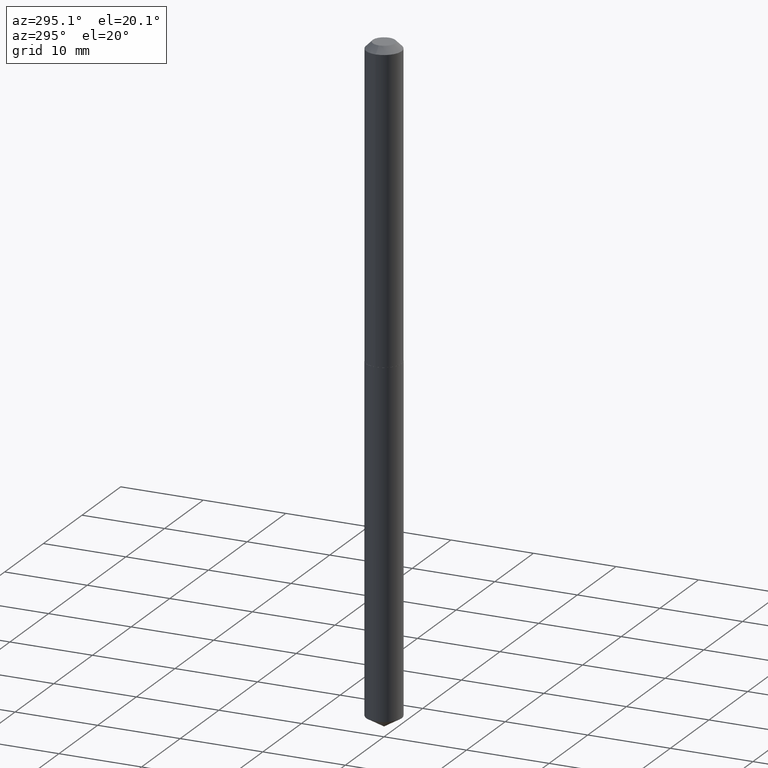
[diagram: clean part render]
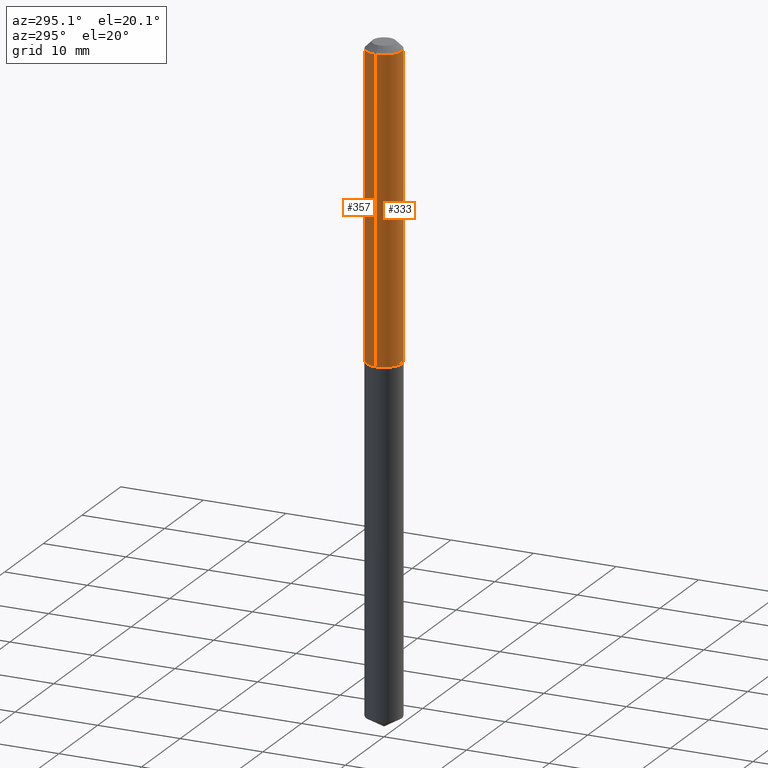
[diagram: same view with one multi-face feature highlighted, each face labeled with its STEP entity id]
A machine part, auxiliary view. The highlighted faces form ONE feature: a constant-radius fillet chain: 2 tangent blend faces with common blend radius 2.1501 mm. The faces share edges in the B-rep.
Their STEP definitions:
[1] entity #357 (Cylinder):
#13 = VERTEX_POINT ( 'NONE', #332 ) ;
#24 = CYLINDRICAL_SURFACE ( 'NONE', #164, 0.08465000000000011404 ) ;
#29 = CARTESIAN_POINT ( 'NONE',  ( 3.589948207479781295E-29, -5.125494605421738793E-15, -1.468000000000000194 ) ) ;
#30 = FACE_OUTER_BOUND ( 'NONE', #221, .T. ) ;
#35 = VERTEX_POINT ( 'NONE', #152 ) ;
#55 = DIRECTION ( 'NONE',  ( -2.445468806185136877E-29, 3.491481338843145188E-15, 1.000000000000000000 ) ) ;
#68 = ORIENTED_EDGE ( 'NONE', *, *, #360, .F. ) ;
#79 = CIRCLE ( 'NONE', #354, 0.08465000000000018343 ) ;
#89 = DIRECTION ( 'NONE',  ( 1.000000000000000000, -6.982962677686266711E-15, 0.000000000000000000 ) ) ;
#140 = DIRECTION ( 'NONE',  ( -2.445468806185136597E-29, 3.491481338843145583E-15, 1.000000000000000000 ) ) ;
#152 = CARTESIAN_POINT ( 'NONE',  ( 0.08465000000000003078, -7.002165825049917055E-16, -0.03125000000000020817 ) ) ;
#164 = AXIS2_PLACEMENT_3D ( 'NONE', #203, #140, #232 ) ;
#175 = EDGE_CURVE ( 'NONE', #344, #35, #223, .T. ) ;
#177 = VECTOR ( 'NONE', #230, 39.37007874015748143 ) ;
#201 = CARTESIAN_POINT ( 'NONE',  ( 0.08465000000000018343, -5.716602396087882778E-15, -1.468000000000000194 ) ) ;
#203 = CARTESIAN_POINT ( 'NONE',  ( 0.000000000000000000, 0.000000000000000000, 0.000000000000000000 ) ) ;
#221 = EDGE_LOOP ( 'NONE', ( #367, #312, #68, #365 ) ) ;
#222 = VECTOR ( 'NONE', #55, 39.37007874015748143 ) ;
#223 = LINE ( 'NONE', #315, #177 ) ;
#230 = DIRECTION ( 'NONE',  ( -2.445468806185136877E-29, 3.491481338843145188E-15, 1.000000000000000000 ) ) ;
#232 = DIRECTION ( 'NONE',  ( 1.000000000000000000, -6.982962677686266711E-15, 4.876176775795935232E-29 ) ) ;
#260 = LINE ( 'NONE', #320, #222 ) ;
#294 = VERTEX_POINT ( 'NONE', #323 ) ;
#296 = CARTESIAN_POINT ( 'NONE',  ( 7.642090019328602662E-31, -1.091087918388490267E-16, -0.03125000000000020817 ) ) ;
#301 = DIRECTION ( 'NONE',  ( 1.000000000000000000, -6.982962677686266711E-15, 0.000000000000000000 ) ) ;
#310 = EDGE_CURVE ( 'NONE', #13, #294, #260, .T. ) ;
#312 = ORIENTED_EDGE ( 'NONE', *, *, #310, .T. ) ;
#315 = CARTESIAN_POINT ( 'NONE',  ( 0.08465000000000011404, -5.911077906661432951E-16, 4.127683640711264817E-30 ) ) ;
#320 = CARTESIAN_POINT ( 'NONE',  ( -0.08465000000000011404, 6.014744258209256177E-16, -4.163878553900783461E-30 ) ) ;
#321 = DIRECTION ( 'NONE',  ( -2.445468806185136597E-29, 3.491481338843145583E-15, 1.000000000000000000 ) ) ;
#323 = CARTESIAN_POINT ( 'NONE',  ( -0.08465000000000003078, -2.015827272809367540E-15, -0.03125000000000020817 ) ) ;
#332 = CARTESIAN_POINT ( 'NONE',  ( -0.08465000000000018343, -4.524020179600813175E-15, -1.468000000000000194 ) ) ;
#336 = CIRCLE ( 'NONE', #388, 0.08465000000000003078 ) ;
#344 = VERTEX_POINT ( 'NONE', #201 ) ;
#349 = EDGE_CURVE ( 'NONE', #344, #13, #79, .T. ) ;
#354 = AXIS2_PLACEMENT_3D ( 'NONE', #29, #364, #301 ) ;
#357 = ADVANCED_FACE ( 'NONE', ( #30 ), #24, .T. ) ;
#360 = EDGE_CURVE ( 'NONE', #35, #294, #336, .T. ) ;
#364 = DIRECTION ( 'NONE',  ( -2.445468806185136597E-29, 3.491481338843145583E-15, 1.000000000000000000 ) ) ;
#365 = ORIENTED_EDGE ( 'NONE', *, *, #175, .F. ) ;
#367 = ORIENTED_EDGE ( 'NONE', *, *, #349, .T. ) ;
#388 = AXIS2_PLACEMENT_3D ( 'NONE', #296, #321, #89 ) ;
[2] entity #333 (Cylinder):
#1 = ORIENTED_EDGE ( 'NONE', *, *, #15, .F. ) ;
#13 = VERTEX_POINT ( 'NONE', #332 ) ;
#15 = EDGE_CURVE ( 'NONE', #294, #35, #350, .T. ) ;
#35 = VERTEX_POINT ( 'NONE', #152 ) ;
#38 = CARTESIAN_POINT ( 'NONE',  ( 7.642090019328602662E-31, -1.091087918388490267E-16, -0.03125000000000020817 ) ) ;
#55 = DIRECTION ( 'NONE',  ( -2.445468806185136877E-29, 3.491481338843145188E-15, 1.000000000000000000 ) ) ;
#60 = CIRCLE ( 'NONE', #206, 0.08465000000000018343 ) ;
#64 = ORIENTED_EDGE ( 'NONE', *, *, #285, .T. ) ;
#86 = DIRECTION ( 'NONE',  ( 1.000000000000000000, -6.982962677686266711E-15, 4.876176775795935232E-29 ) ) ;
#100 = AXIS2_PLACEMENT_3D ( 'NONE', #298, #270, #86 ) ;
#122 = DIRECTION ( 'NONE',  ( -2.445468806185136597E-29, 3.491481338843145583E-15, 1.000000000000000000 ) ) ;
#152 = CARTESIAN_POINT ( 'NONE',  ( 0.08465000000000003078, -7.002165825049917055E-16, -0.03125000000000020817 ) ) ;
#173 = CARTESIAN_POINT ( 'NONE',  ( 3.589948207479781295E-29, -5.125494605421738793E-15, -1.468000000000000194 ) ) ;
#174 = ORIENTED_EDGE ( 'NONE', *, *, #310, .F. ) ;
#175 = EDGE_CURVE ( 'NONE', #344, #35, #223, .T. ) ;
#177 = VECTOR ( 'NONE', #230, 39.37007874015748143 ) ;
#181 = DIRECTION ( 'NONE',  ( -2.445468806185136597E-29, 3.491481338843145583E-15, 1.000000000000000000 ) ) ;
#201 = CARTESIAN_POINT ( 'NONE',  ( 0.08465000000000018343, -5.716602396087882778E-15, -1.468000000000000194 ) ) ;
#206 = AXIS2_PLACEMENT_3D ( 'NONE', #173, #181, #328 ) ;
#212 = DIRECTION ( 'NONE',  ( 1.000000000000000000, -6.982962677686266711E-15, 0.000000000000000000 ) ) ;
#222 = VECTOR ( 'NONE', #55, 39.37007874015748143 ) ;
#223 = LINE ( 'NONE', #315, #177 ) ;
#230 = DIRECTION ( 'NONE',  ( -2.445468806185136877E-29, 3.491481338843145188E-15, 1.000000000000000000 ) ) ;
#260 = LINE ( 'NONE', #320, #222 ) ;
#270 = DIRECTION ( 'NONE',  ( -2.445468806185136597E-29, 3.491481338843145583E-15, 1.000000000000000000 ) ) ;
#285 = EDGE_CURVE ( 'NONE', #13, #344, #60, .T. ) ;
#293 = FACE_OUTER_BOUND ( 'NONE', #324, .T. ) ;
#294 = VERTEX_POINT ( 'NONE', #323 ) ;
#298 = CARTESIAN_POINT ( 'NONE',  ( 0.000000000000000000, 0.000000000000000000, 0.000000000000000000 ) ) ;
#310 = EDGE_CURVE ( 'NONE', #13, #294, #260, .T. ) ;
#315 = CARTESIAN_POINT ( 'NONE',  ( 0.08465000000000011404, -5.911077906661432951E-16, 4.127683640711264817E-30 ) ) ;
#320 = CARTESIAN_POINT ( 'NONE',  ( -0.08465000000000011404, 6.014744258209256177E-16, -4.163878553900783461E-30 ) ) ;
#323 = CARTESIAN_POINT ( 'NONE',  ( -0.08465000000000003078, -2.015827272809367540E-15, -0.03125000000000020817 ) ) ;
#324 = EDGE_LOOP ( 'NONE', ( #174, #64, #370, #1 ) ) ;
#328 = DIRECTION ( 'NONE',  ( 1.000000000000000000, -6.982962677686266711E-15, 0.000000000000000000 ) ) ;
#332 = CARTESIAN_POINT ( 'NONE',  ( -0.08465000000000018343, -4.524020179600813175E-15, -1.468000000000000194 ) ) ;
#333 = ADVANCED_FACE ( 'NONE', ( #293 ), #361, .T. ) ;
#344 = VERTEX_POINT ( 'NONE', #201 ) ;
#350 = CIRCLE ( 'NONE', #381, 0.08465000000000003078 ) ;
#361 = CYLINDRICAL_SURFACE ( 'NONE', #100, 0.08465000000000011404 ) ;
#370 = ORIENTED_EDGE ( 'NONE', *, *, #175, .T. ) ;
#381 = AXIS2_PLACEMENT_3D ( 'NONE', #38, #122, #212 ) ;